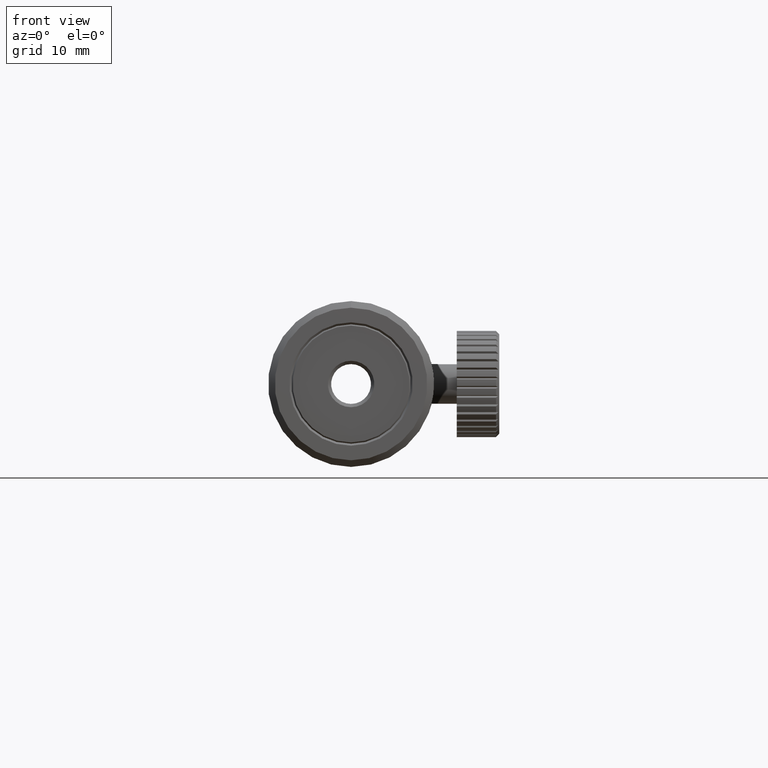
[diagram: clean part render]
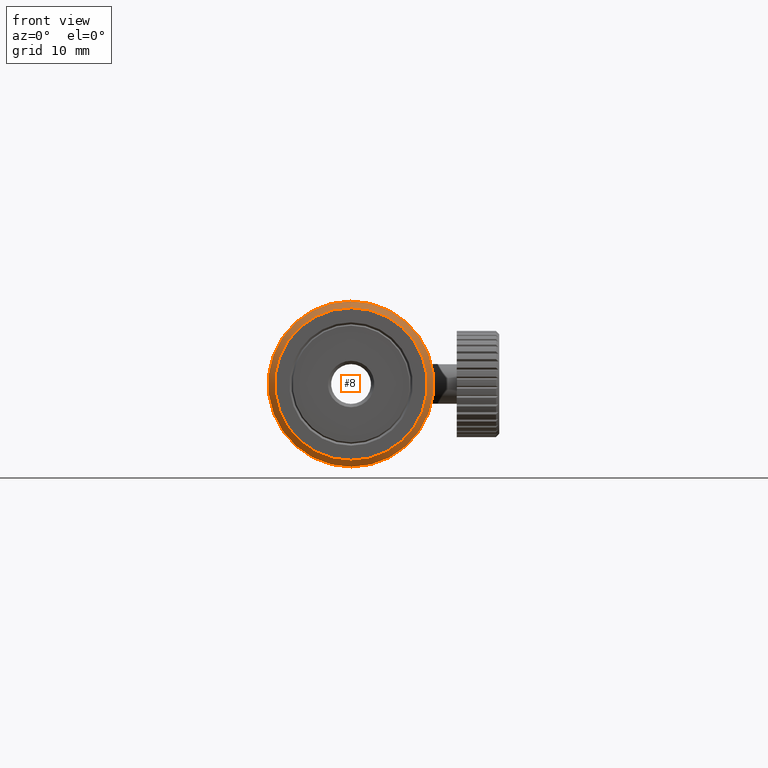
[diagram: same view with one face highlighted and labeled with its STEP entity id]
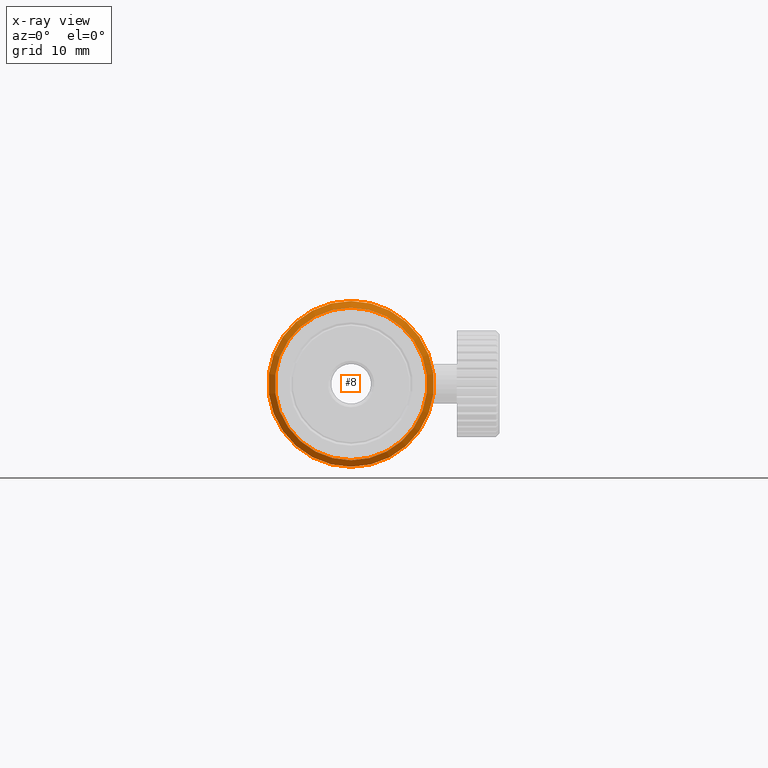
[diagram: x-ray of the same camera — body ghosted, the highlighted face saturated]
A machine part, front view. The second image highlights one B-rep face of the part: STEP entity #8.
The next image is the same camera in x-ray: the body ghosted, the highlighted face saturated — about 0% of this face is hidden behind the body in this view.
In plain terms, the highlighted conical surface has half-angle 45 deg.
Its self-contained STEP definition (entity closure, byte-faithful):
#8 = ADVANCED_FACE ( 'NONE', ( #4292, #4296 ), #4300, .T. ) ;
#219 = CARTESIAN_POINT ( 'NONE',  ( -6.149801035848844900, -6.112444597380676500, 12.50000000000000000 ) ) ;
#222 = CARTESIAN_POINT ( 'NONE',  ( -6.149801035848844900, -7.112444597380677400, 11.49999999999999600 ) ) ;
#296 = CARTESIAN_POINT ( 'NONE',  ( -6.149801035848844900, -6.112444597380676500, 5.421010862427522200E-016 ) ) ;
#297 = DIRECTION ( 'NONE',  ( -0.0000000000000000000, 1.000000000000000000, -0.0000000000000000000 ) ) ;
#298 = DIRECTION ( 'NONE',  ( 0.0000000000000000000, 0.0000000000000000000, 1.000000000000000000 ) ) ;
#456 = AXIS2_PLACEMENT_3D ( 'NONE', #2773, #2778, #2775 ) ;
#1535 = EDGE_LOOP ( 'NONE', ( #4640 ) ) ;
#1536 = EDGE_LOOP ( 'NONE', ( #4641 ) ) ;
#1866 = EDGE_CURVE ( 'NONE', #3808, #3808, #2580, .T. ) ;
#1869 = EDGE_CURVE ( 'NONE', #3811, #3811, #2576, .T. ) ;
#2576 = CIRCLE ( 'NONE', #4478, 11.49999999999999600 ) ;
#2580 = CIRCLE ( 'NONE', #4477, 12.50000000000000000 ) ;
#2773 = CARTESIAN_POINT ( 'NONE',  ( -6.149801035848844900, -6.112444597380676500, 5.421010862427522200E-016 ) ) ;
#2775 = DIRECTION ( 'NONE',  ( 0.0000000000000000000, 0.0000000000000000000, 1.000000000000000000 ) ) ;
#2778 = DIRECTION ( 'NONE',  ( -0.0000000000000000000, 1.000000000000000000, -0.0000000000000000000 ) ) ;
#2987 = CARTESIAN_POINT ( 'NONE',  ( -6.149801035848844900, -7.112444597380677400, 5.421010862427522200E-016 ) ) ;
#2988 = DIRECTION ( 'NONE',  ( -0.0000000000000000000, -1.000000000000000000, -0.0000000000000000000 ) ) ;
#2989 = DIRECTION ( 'NONE',  ( 0.0000000000000000000, 0.0000000000000000000, 1.000000000000000000 ) ) ;
#3808 = VERTEX_POINT ( 'NONE', #219 ) ;
#3811 = VERTEX_POINT ( 'NONE', #222 ) ;
#4292 = FACE_BOUND ( 'NONE', #1536, .T. ) ;
#4296 = FACE_OUTER_BOUND ( 'NONE', #1535, .T. ) ;
#4300 = CONICAL_SURFACE ( 'NONE', #456, 12.50000000000000000, 0.7853981633974500600 ) ;
#4477 = AXIS2_PLACEMENT_3D ( 'NONE', #296, #297, #298 ) ;
#4478 = AXIS2_PLACEMENT_3D ( 'NONE', #2987, #2988, #2989 ) ;
#4640 = ORIENTED_EDGE ( 'NONE', *, *, #1866, .F. ) ;
#4641 = ORIENTED_EDGE ( 'NONE', *, *, #1869, .F. ) ;